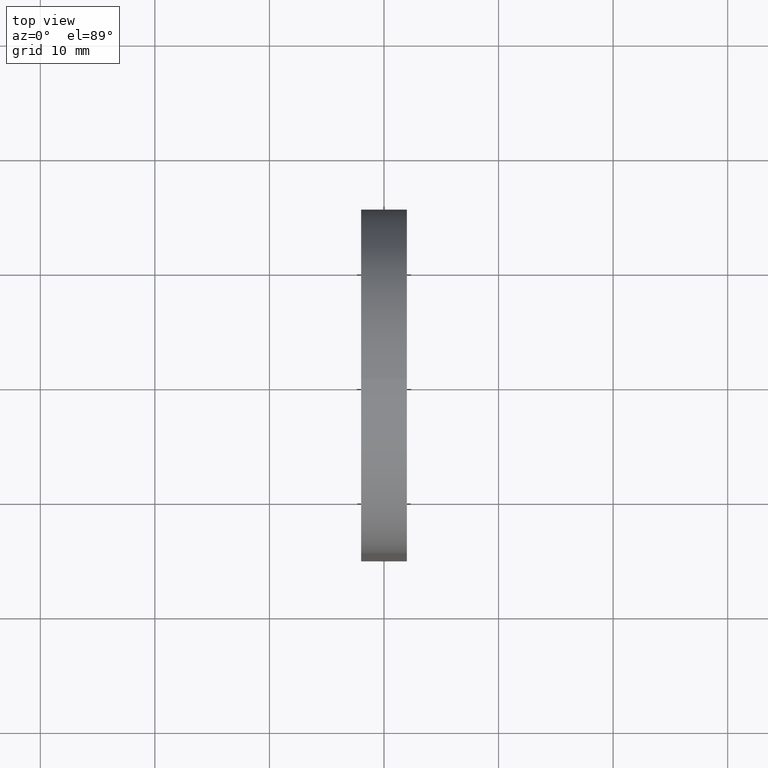
[diagram: clean part render]
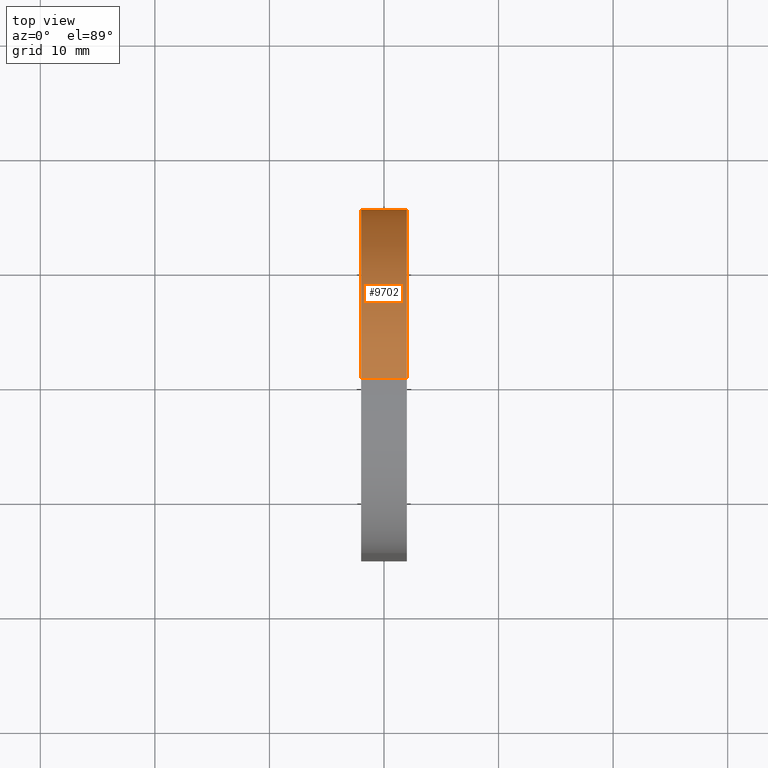
[diagram: same view with one face highlighted and labeled with its STEP entity id]
A machine part, top view. The second image highlights one B-rep face of the part: STEP entity #9702.
In plain terms, the highlighted cylindrical surface (partial cylindrical patch) has radius 15 mm, axis along (-1, -0, -0).
Its self-contained STEP definition (entity closure, byte-faithful):
#510 = LINE ( 'NONE', #1939, #8195 ) ;
#1046 = VERTEX_POINT ( 'NONE', #11990 ) ;
#1224 = VERTEX_POINT ( 'NONE', #11020 ) ;
#1326 = CIRCLE ( 'NONE', #2824, 15.00000000000000000 ) ;
#1651 = DIRECTION ( 'NONE',  ( 0.0000000000000000000, 0.0000000000000000000, 1.000000000000000000 ) ) ;
#1778 = DIRECTION ( 'NONE',  ( -1.000000000000000000, -0.0000000000000000000, 0.0000000000000000000 ) ) ;
#1939 = CARTESIAN_POINT ( 'NONE',  ( 2.000000000000000000, 0.0000000000000000000, 49.99999999999999300 ) ) ;
#2228 = EDGE_CURVE ( 'NONE', #1224, #1046, #1326, .T. ) ;
#2824 = AXIS2_PLACEMENT_3D ( 'NONE', #2963, #3845, #11316 ) ;
#2963 = CARTESIAN_POINT ( 'NONE',  ( 2.000000000000000000, 0.0000000000000000000, 34.99999999999999300 ) ) ;
#2977 = ORIENTED_EDGE ( 'NONE', *, *, #2228, .T. ) ;
#3028 = ORIENTED_EDGE ( 'NONE', *, *, #10610, .T. ) ;
#3471 = CARTESIAN_POINT ( 'NONE',  ( -2.000000000000000000, 0.0000000000000000000, 49.99999999999999300 ) ) ;
#3589 = EDGE_LOOP ( 'NONE', ( #8612, #2977, #3028, #9292 ) ) ;
#3845 = DIRECTION ( 'NONE',  ( -1.000000000000000000, -0.0000000000000000000, 0.0000000000000000000 ) ) ;
#4596 = DIRECTION ( 'NONE',  ( -1.000000000000000000, -0.0000000000000000000, -0.0000000000000000000 ) ) ;
#5780 = CARTESIAN_POINT ( 'NONE',  ( -2.000000000000000000, 0.0000000000000000000, 34.99999999999999300 ) ) ;
#5872 = EDGE_CURVE ( 'NONE', #1224, #11256, #510, .T. ) ;
#6007 = CARTESIAN_POINT ( 'NONE',  ( 2.000000000000000000, 14.99999999999999800, 34.99999999999999300 ) ) ;
#6169 = CIRCLE ( 'NONE', #11398, 15.00000000000000000 ) ;
#6394 = EDGE_CURVE ( 'NONE', #11256, #11778, #6169, .T. ) ;
#7316 = CARTESIAN_POINT ( 'NONE',  ( 2.000000000000000000, 0.0000000000000000000, 34.99999999999999300 ) ) ;
#7425 = DIRECTION ( 'NONE',  ( 0.0000000000000000000, 0.0000000000000000000, 1.000000000000000000 ) ) ;
#8043 = CYLINDRICAL_SURFACE ( 'NONE', #11663, 15.00000000000000000 ) ;
#8195 = VECTOR ( 'NONE', #9304, 1000.000000000000000 ) ;
#8612 = ORIENTED_EDGE ( 'NONE', *, *, #5872, .F. ) ;
#8641 = FACE_OUTER_BOUND ( 'NONE', #3589, .T. ) ;
#9292 = ORIENTED_EDGE ( 'NONE', *, *, #6394, .F. ) ;
#9304 = DIRECTION ( 'NONE',  ( -1.000000000000000000, -0.0000000000000000000, -0.0000000000000000000 ) ) ;
#9702 = ADVANCED_FACE ( 'NONE', ( #8641 ), #8043, .T. ) ;
#9923 = LINE ( 'NONE', #6007, #9939 ) ;
#9939 = VECTOR ( 'NONE', #10678, 1000.000000000000000 ) ;
#10610 = EDGE_CURVE ( 'NONE', #1046, #11778, #9923, .T. ) ;
#10678 = DIRECTION ( 'NONE',  ( -1.000000000000000000, -0.0000000000000000000, -0.0000000000000000000 ) ) ;
#11020 = CARTESIAN_POINT ( 'NONE',  ( 2.000000000000000000, 0.0000000000000000000, 49.99999999999999300 ) ) ;
#11139 = CARTESIAN_POINT ( 'NONE',  ( -2.000000000000000000, 14.99999999999999800, 34.99999999999999300 ) ) ;
#11256 = VERTEX_POINT ( 'NONE', #3471 ) ;
#11316 = DIRECTION ( 'NONE',  ( 0.0000000000000000000, 0.0000000000000000000, 1.000000000000000000 ) ) ;
#11398 = AXIS2_PLACEMENT_3D ( 'NONE', #5780, #1778, #7425 ) ;
#11663 = AXIS2_PLACEMENT_3D ( 'NONE', #7316, #4596, #1651 ) ;
#11778 = VERTEX_POINT ( 'NONE', #11139 ) ;
#11990 = CARTESIAN_POINT ( 'NONE',  ( 2.000000000000000000, 14.99999999999999800, 34.99999999999999300 ) ) ;